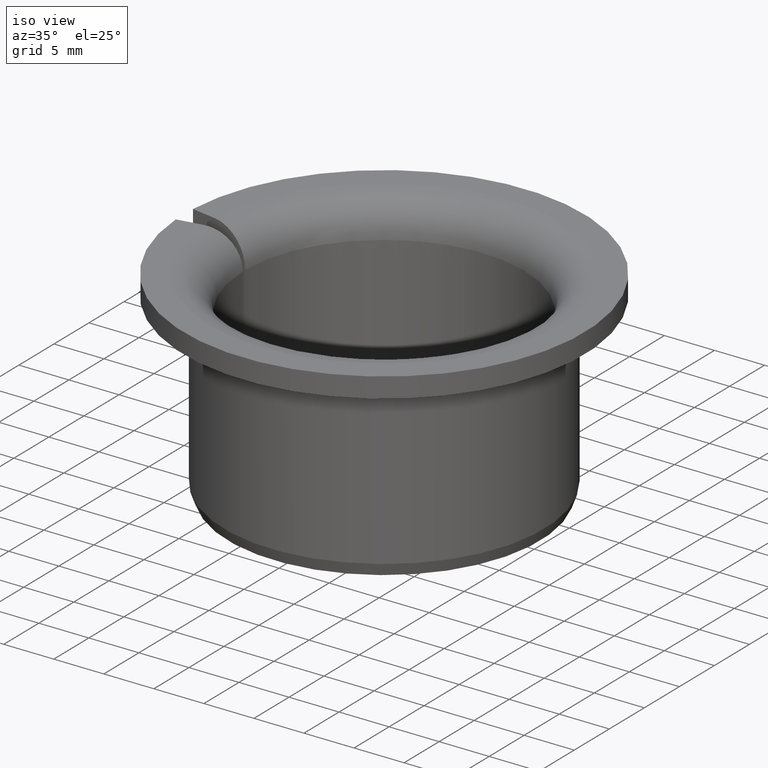
[diagram: clean part render]
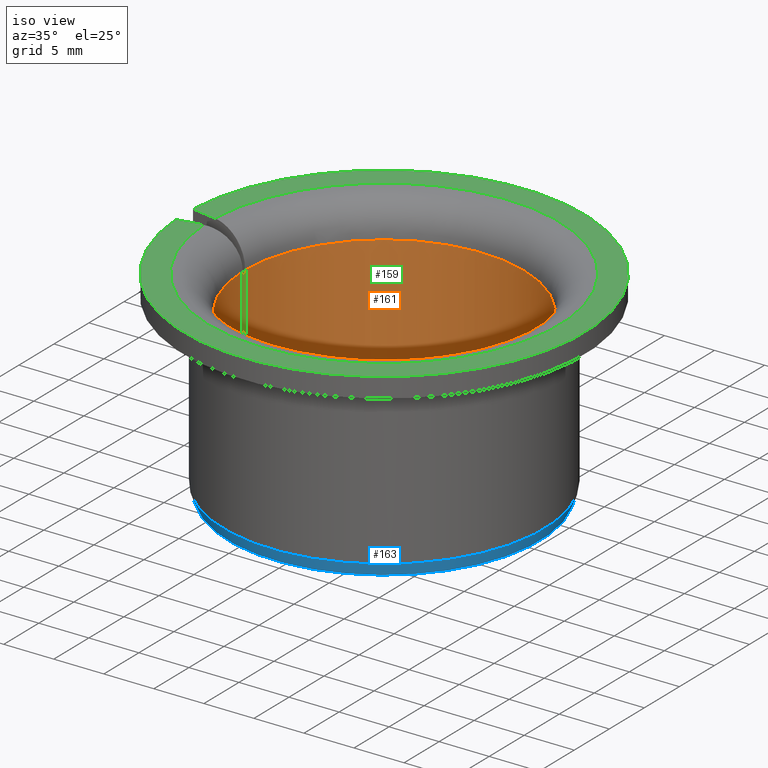
[diagram: same view with three faces highlighted in distinct colors, each labeled with its STEP entity id]
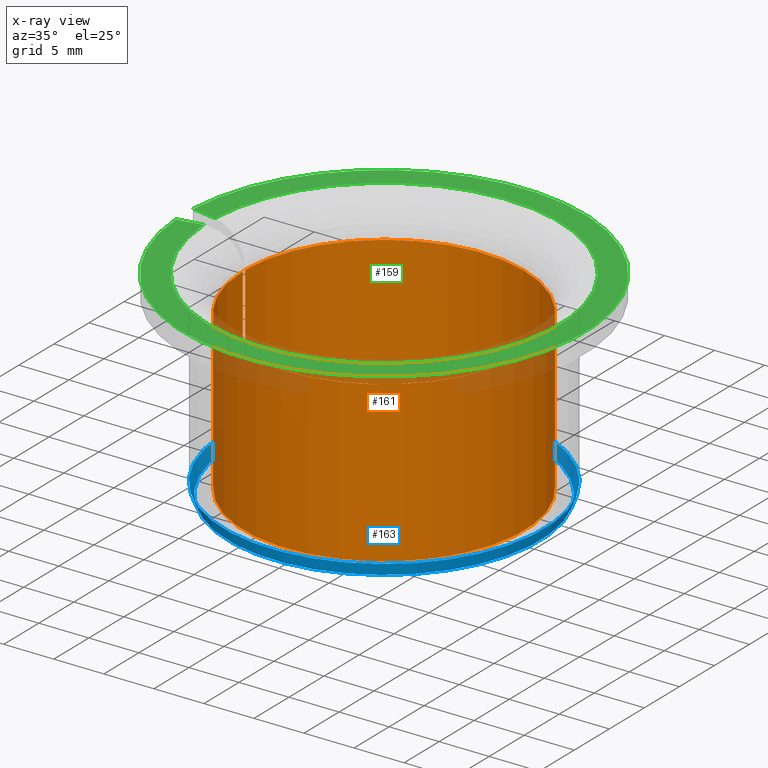
[diagram: x-ray of the same camera — body ghosted, the three highlighted faces saturated]
A machine part, iso view with three faces highlighted in distinct colors.
The next image is the same camera in x-ray (body ghosted, the three faces saturated) — at least one of them is partly hidden behind the body in this view.
Their STEP definitions:

[orange] entity #161 — the highlighted cylindrical surface (partial cylindrical patch) has radius 14 mm, axis along (-0, 0, -1).
#161=ADVANCED_FACE('',(#183),#184,.F.);
#183=FACE_OUTER_BOUND('',#208,.T.);
#184=CYLINDRICAL_SURFACE('',#209,0.014);
#208=EDGE_LOOP('',(#278,#279,#280,#281));
#209=AXIS2_PLACEMENT_3D('',#282,#283,#284);
#278=ORIENTED_EDGE('',*,*,#324,.T.);
#279=ORIENTED_EDGE('',*,*,#338,.T.);
#280=ORIENTED_EDGE('',*,*,#325,.F.);
#281=ORIENTED_EDGE('',*,*,#321,.F.);
#282=CARTESIAN_POINT('',(0.0,0.0,0.0));
#283=DIRECTION('',(0.0,-6.12323399573677E-017,-1.0));
#284=DIRECTION('',(0.0,1.0,-6.12323399573677E-017));
#321=EDGE_CURVE('',#359,#342,#361,.F.);
#324=EDGE_CURVE('',#359,#364,#366,.T.);
#325=EDGE_CURVE('',#342,#367,#368,.T.);
#338=EDGE_CURVE('',#364,#367,#387,.F.);
#342=VERTEX_POINT('',#392);
#359=VERTEX_POINT('',#447);
#361=LINE('',#452,#453);
#364=VERTEX_POINT('',#456);
#366=CIRCLE('',#461,0.014);
#367=VERTEX_POINT('',#462);
#368=CIRCLE('',#463,0.014);
#387=LINE('',#516,#517);
#392=CARTESIAN_POINT('',(0.0139988920152584,-0.000176131613104306,0.0165));
#447=CARTESIAN_POINT('',(0.0139988920152584,-0.000176131613104306,0.0005));
#452=CARTESIAN_POINT('',(0.0139988920152584,-0.000176131613104307,-4.88880609482754E-020));
#453=VECTOR('',#531,1.0);
#456=CARTESIAN_POINT('',(0.0139988920152584,0.000176131613104307,0.0005));
#461=AXIS2_PLACEMENT_3D('',#535,#536,#537);
#462=CARTESIAN_POINT('',(0.0139988920152584,0.000176131613104309,0.0165));
#463=AXIS2_PLACEMENT_3D('',#538,#539,#540);
#516=CARTESIAN_POINT('',(0.0139988920152584,0.000176131613104308,4.05519229760825E-020));
#517=VECTOR('',#563,1.0);
#531=DIRECTION('',(0.0,-6.12323399573677E-017,-1.0));
#535=CARTESIAN_POINT('',(0.0,0.0,0.0005));
#536=DIRECTION('',(0.0,-6.12323399573677E-017,-1.0));
#537=DIRECTION('',(0.0,1.0,-6.12323399573677E-017));
#538=CARTESIAN_POINT('',(0.0,0.0,0.0165));
#539=DIRECTION('',(0.0,-6.12323399573677E-017,-1.0));
#540=DIRECTION('',(0.0,1.0,-6.12323399573677E-017));
#563=DIRECTION('',(0.0,-6.12323399573677E-017,-1.0));

[blue] entity #163 — the highlighted conical surface has half-angle 20 deg.
#163=ADVANCED_FACE('',(#187),#188,.T.);
#187=FACE_OUTER_BOUND('',#212,.T.);
#188=CONICAL_SURFACE('',#213,0.0155632357188806,0.349065850398864);
#212=EDGE_LOOP('',(#292,#293,#294,#295));
#213=AXIS2_PLACEMENT_3D('',#296,#297,#298);
#292=ORIENTED_EDGE('',*,*,#337,.T.);
#293=ORIENTED_EDGE('',*,*,#341,.T.);
#294=ORIENTED_EDGE('',*,*,#339,.F.);
#295=ORIENTED_EDGE('',*,*,#318,.F.);
#296=CARTESIAN_POINT('',(0.0,0.0,0.0));
#297=DIRECTION('',(-0.0,6.12323399573677E-017,1.0));
#298=DIRECTION('',(0.0,-1.0,6.12323399573677E-017));
#318=EDGE_CURVE('',#353,#355,#356,.T.);
#337=EDGE_CURVE('',#353,#384,#386,.T.);
#339=EDGE_CURVE('',#355,#388,#389,.T.);
#341=EDGE_CURVE('',#384,#388,#391,.T.);
#353=VERTEX_POINT('',#436);
#355=VERTEX_POINT('',#439);
#356=B_SPLINE_CURVE_WITH_KNOTS('',3,(#440,#441,#442,#443),.UNSPECIFIED.,.F.,.F.,(4,4),(2.13088237343835E-007,0.00127878594152087),.UNSPECIFIED.);
#384=VERTEX_POINT('',#512);
#386=CIRCLE('',#515,0.016);
#388=VERTEX_POINT('',#518);
#389=CIRCLE('',#519,0.0155632357188806);
#391=B_SPLINE_CURVE_WITH_KNOTS('',3,(#522,#523,#524,#525),.UNSPECIFIED.,.F.,.F.,(4,4),(2.13088237343835E-007,0.00127878594152087),.UNSPECIFIED.);
#436=CARTESIAN_POINT('',(0.0159913038571897,-0.000527447577519834,0.0012));
#439=CARTESIAN_POINT('',(0.0155567050144712,-0.000450816075763894,6.43083039248804E-019));
#440=CARTESIAN_POINT('',(0.0159913038571896,-0.000527447577519836,0.0012));
#441=CARTESIAN_POINT('',(0.0158464739563331,-0.000501910158385493,0.000799986416684789));
#442=CARTESIAN_POINT('',(0.01570160871416,-0.000476366507623506,0.000399986024809793));
#443=CARTESIAN_POINT('',(0.0155567050144712,-0.000450816075763895,1.18137090456521E-017));
#512=CARTESIAN_POINT('',(0.0159913038571897,0.000527447577519836,0.0012));
#515=AXIS2_PLACEMENT_3D('',#560,#561,#562);
#518=CARTESIAN_POINT('',(0.0155567050144712,0.000450816075763894,-2.76045232094212E-020));
#519=AXIS2_PLACEMENT_3D('',#564,#565,#566);
#522=CARTESIAN_POINT('',(0.0159913038571896,0.000527447577519836,0.0012));
#523=CARTESIAN_POINT('',(0.0158464739563331,0.000501910158385493,0.000799986416684789));
#524=CARTESIAN_POINT('',(0.01570160871416,0.000476366507623506,0.000399986024809793));
#525=CARTESIAN_POINT('',(0.0155567050144712,0.000450816075763895,1.12753151687781E-017));
#560=CARTESIAN_POINT('',(0.0,0.0,0.0012));
#561=DIRECTION('',(0.0,-6.12323399573677E-017,-1.0));
#562=DIRECTION('',(0.0,1.0,-6.12323399573677E-017));
#564=CARTESIAN_POINT('',(0.0,0.0,0.0));
#565=DIRECTION('',(0.0,-6.12323399573677E-017,-1.0));
#566=DIRECTION('',(0.0,1.0,-6.12323399573677E-017));

[green] entity #159 — the highlighted planar face has unit normal (0, -0, 1).
#159=ADVANCED_FACE('',(#179),#180,.T.);
#179=FACE_OUTER_BOUND('',#204,.T.);
#180=PLANE('',#205);
#204=EDGE_LOOP('',(#264,#265,#266,#267));
#205=AXIS2_PLACEMENT_3D('',#268,#269,#270);
#264=ORIENTED_EDGE('',*,*,#327,.T.);
#265=ORIENTED_EDGE('',*,*,#335,.F.);
#266=ORIENTED_EDGE('',*,*,#333,.F.);
#267=ORIENTED_EDGE('',*,*,#313,.T.);
#268=CARTESIAN_POINT('',(0.02,0.0,0.02));
#269=DIRECTION('',(0.0,6.12323399573677E-017,1.0));
#270=DIRECTION('',(0.0,-1.0,6.12323399573677E-017));
#313=EDGE_CURVE('',#345,#343,#346,.T.);
#327=EDGE_CURVE('',#343,#369,#371,.T.);
#333=EDGE_CURVE('',#345,#380,#381,.T.);
#335=EDGE_CURVE('',#380,#369,#383,.T.);
#343=VERTEX_POINT('',#393);
#345=VERTEX_POINT('',#412);
#346=LINE('',#413,#414);
#369=VERTEX_POINT('',#464);
#371=CIRCLE('',#483,0.0175);
#380=VERTEX_POINT('',#506);
#381=CIRCLE('',#507,0.02);
#383=LINE('',#510,#511);
#393=CARTESIAN_POINT('',(0.0174821448752821,-0.000790323072956412,0.02));
#412=CARTESIAN_POINT('',(0.0199622870025647,-0.00122763904598803,0.02));
#413=CARTESIAN_POINT('',(0.0248176930361465,-0.00208377813200316,0.02));
#414=VECTOR('',#526,1.0);
#464=CARTESIAN_POINT('',(0.0174821448752821,0.000790323072956419,0.02));
#483=AXIS2_PLACEMENT_3D('',#541,#542,#543);
#506=CARTESIAN_POINT('',(0.0199622870025647,0.00122763904598804,0.02));
#507=AXIS2_PLACEMENT_3D('',#554,#555,#556);
#510=CARTESIAN_POINT('',(0.0248176930361465,0.00208377813200317,0.02));
#511=VECTOR('',#558,1.0);
#526=DIRECTION('',(-0.984807753012208,0.173648177666931,0.0));
#541=CARTESIAN_POINT('',(0.0,0.0,0.02));
#542=DIRECTION('',(0.0,-6.12323399573677E-017,-1.0));
#543=DIRECTION('',(0.0,1.0,-6.12323399573677E-017));
#554=CARTESIAN_POINT('',(0.0,0.0,0.02));
#555=DIRECTION('',(0.0,-6.12323399573677E-017,-1.0));
#556=DIRECTION('',(0.0,1.0,-6.12323399573677E-017));
#558=DIRECTION('',(-0.984807753012208,-0.173648177666931,2.0942693688385E-017));